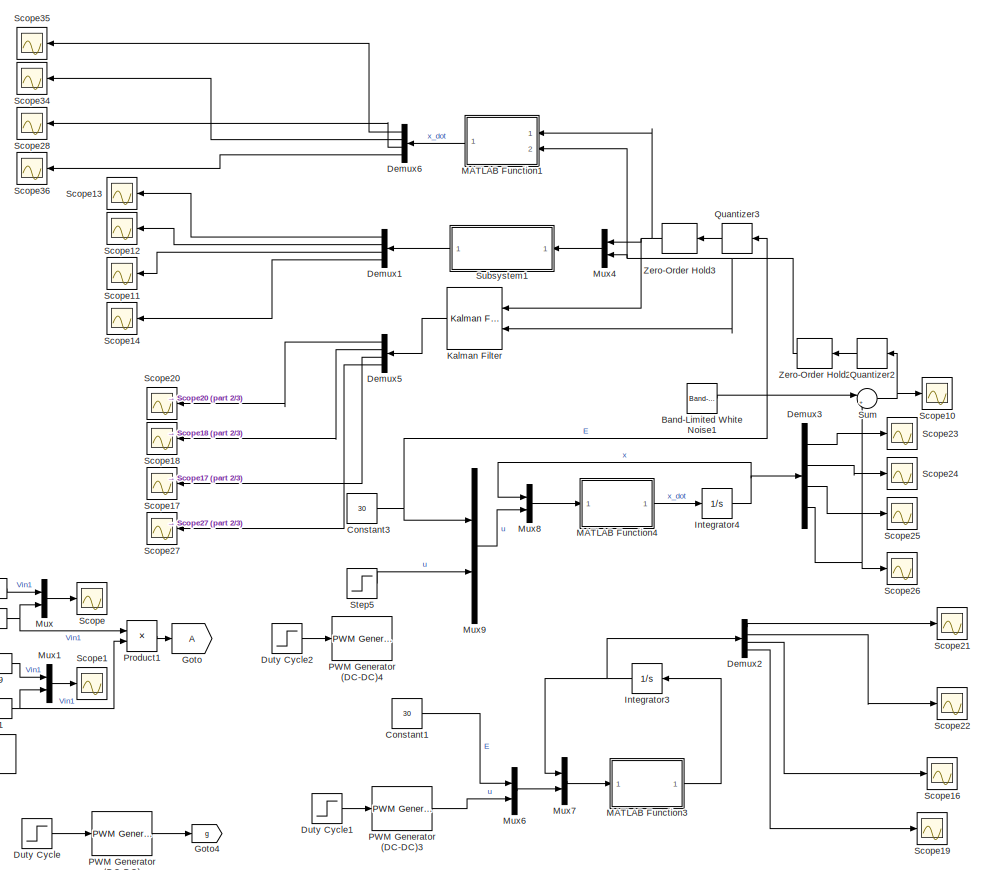
[diagram: root canvas - part 1/3, middle right region]
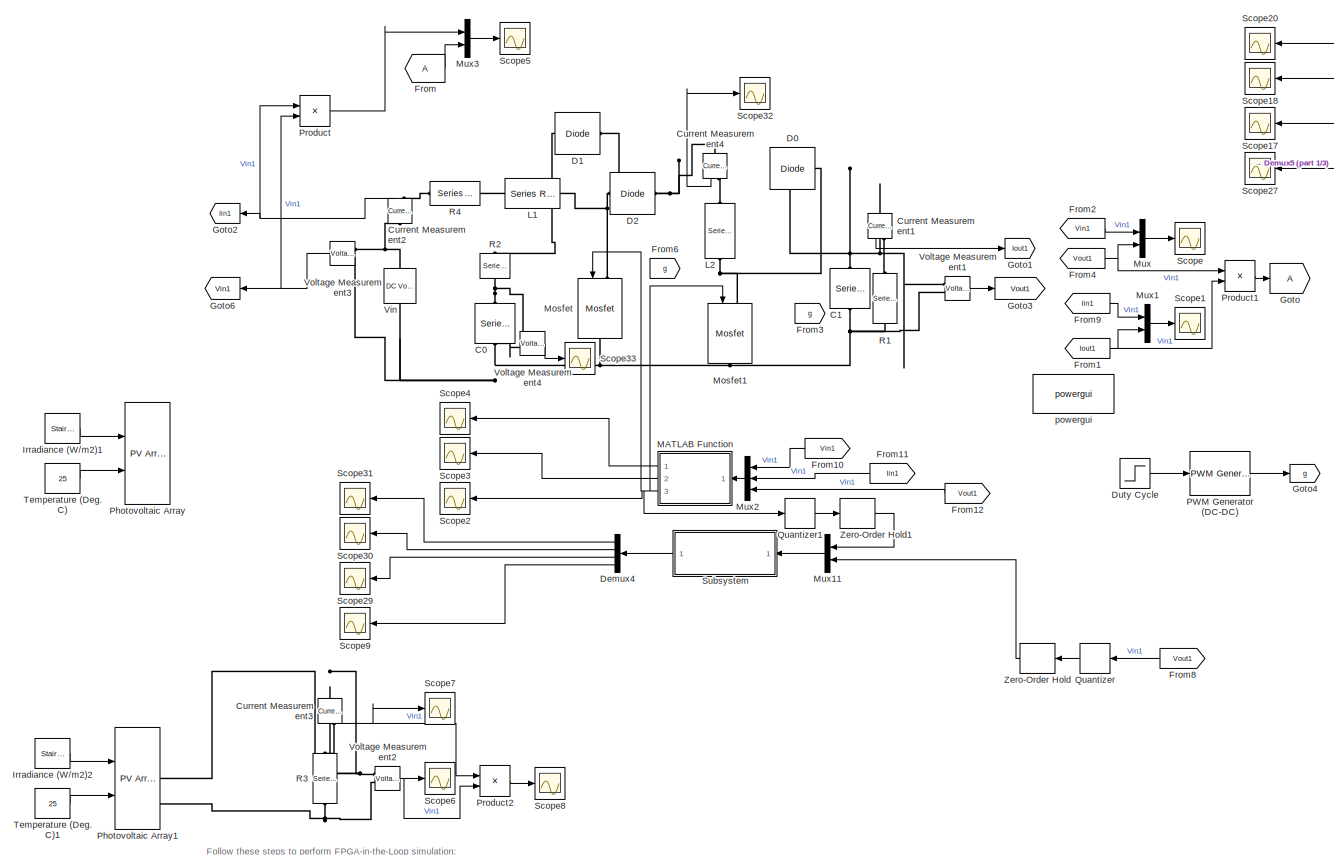
[diagram: root canvas - part 2/3, middle left region]
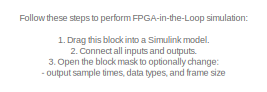
[diagram: root canvas - part 3/3, bottom left region]
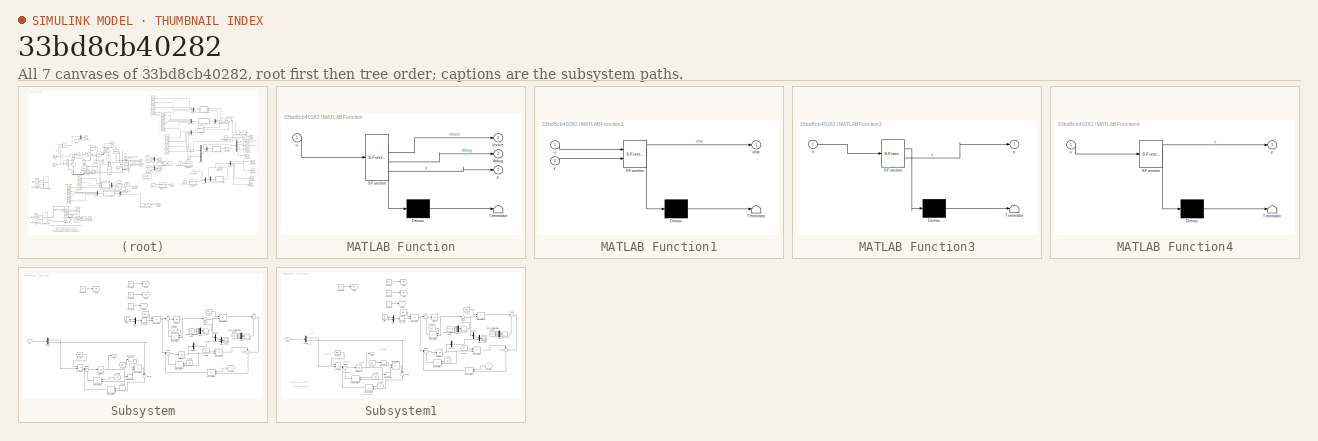
[diagram: thumbnail index - all 7 canvases of the model, root first then tree order]
MODEL slx_33bd8cb40282
KIND model
CONFIG AbsTol = auto
CONFIG EnableMultiTasking = off
CONFIG FixedStep = auto
CONFIG MaxStep = auto
CONFIG MinStep = auto
CONFIG RelTol = 1e-3
CONFIG SampleTimeConstraint = Unconstrained
CONFIG SolverName = VariableStepAuto
CONFIG StartTime = 0.0
CONFIG StopTime = 10.0
BLOCK [Reference] Band-Limited White Noise1  REF=simulink/Sources/Band-Limited
White Noise
  Ports = [0, 1]
  SourceBlock = simulink/Sources/Band-Limited\nWhite Noise
  SourceProductBaseCode = SL
  SourceType = Band-Limited White Noise.
BLOCK [Reference] C0  REF=powerlib/Elements/Series RLC Branch
  NameLocation = left
  Ports = [0, 0, 0, 0, 0, 1, 1]
  SourceBlock = powerlib/Elements/Series RLC Branch
  SourceProductBaseCode = PS
  SourceType = Series RLC Branch
BLOCK [Reference] C1  REF=powerlib/Elements/Series RLC Branch
  NameLocation = left
  Ports = [0, 0, 0, 0, 0, 1, 1]
  SourceBlock = powerlib/Elements/Series RLC Branch
  SourceProductBaseCode = PS
  SourceType = Series RLC Branch
BLOCK [Constant] Constant1
  Commented = on
  Value = 30
BLOCK [Constant] Constant3
  Value = 30
BLOCK [Reference] Current Measurement1  REF=powerlib/Measurements/Current Measurement
  NameLocation = right
  Ports = [0, 1, 0, 0, 0, 1, 1]
  SourceBlock = powerlib/Measurements/Current Measurement
  SourceProductBaseCode = PS
  SourceType = Current Measurement
  UserDataPersistent = on
BLOCK [Reference] Current Measurement2  REF=powerlib/Measurements/Current Measurement
  NameLocation = right
  Ports = [0, 1, 0, 0, 0, 1, 1]
  SourceBlock = powerlib/Measurements/Current Measurement
  SourceProductBaseCode = PS
  SourceType = Current Measurement
  UserDataPersistent = on
BLOCK [Reference] Current Measurement3  REF=powerlib/Measurements/Current Measurement
  NameLocation = left
  Ports = [0, 1, 0, 0, 0, 1, 1]
  SourceBlock = powerlib/Measurements/Current Measurement
  SourceProductBaseCode = PS
  SourceType = Current Measurement
  UserDataPersistent = on
BLOCK [Reference] Current Measurement4  REF=powerlib/Measurements/Current Measurement
  NameLocation = right
  Ports = [0, 1, 0, 0, 0, 1, 1]
  SourceBlock = powerlib/Measurements/Current Measurement
  SourceProductBaseCode = PS
  SourceType = Current Measurement
  UserDataPersistent = on
BLOCK [Reference] D0  REF=powerlib/Power
Electronics/Diode
  Ports = [0, 0, 0, 0, 0, 1, 1]
  SourceBlock = powerlib/Power\nElectronics/Diode
  SourceProductBaseCode = PS
  SourceType = Diode
BLOCK [Reference] D1  REF=powerlib/Power
Electronics/Diode
  Ports = [0, 0, 0, 0, 0, 1, 1]
  SourceBlock = powerlib/Power\nElectronics/Diode
  SourceProductBaseCode = PS
  SourceType = Diode
BLOCK [Reference] D2  REF=powerlib/Power
Electronics/Diode
  Ports = [0, 0, 0, 0, 0, 1, 1]
  SourceBlock = powerlib/Power\nElectronics/Diode
  SourceProductBaseCode = PS
  SourceType = Diode
BLOCK [Demux] Demux1
  Ports = [1, 4]
BLOCK [Demux] Demux2
  Commented = on
  Ports = [1, 4]
BLOCK [Demux] Demux3
  Ports = [1, 4]
BLOCK [Demux] Demux4
  Ports = [1, 4]
BLOCK [Demux] Demux5
  Ports = [1, 4]
BLOCK [Demux] Demux6
  Ports = [1, 4]
BLOCK [Step] Duty Cycle
  After = 0.5
  Before = 0.5
  SampleTime = 0
  Time = 0.5
BLOCK [Step] Duty Cycle1
  After = 0.5
  Before = 0.5
  Commented = on
  SampleTime = 0
  Time = 0.5
BLOCK [Step] Duty Cycle2
  After = 0.5
  Before = 0.5
  Commented = on
  SampleTime = 0
  Time = 0.5
BLOCK [From] From
BLOCK [From] From1
  GotoTag = Iout1
BLOCK [From] From10
  GotoTag = Vin1
BLOCK [From] From11
  GotoTag = Iin1
BLOCK [From] From12
  GotoTag = Vout1
BLOCK [From] From2
  GotoTag = Vin1
BLOCK [From] From3
  GotoTag = g
BLOCK [From] From4
  GotoTag = Vout1
BLOCK [From] From6
  GotoTag = g
BLOCK [From] From8
  GotoTag = Vout1
BLOCK [From] From9
  GotoTag = Iin1
BLOCK [Goto] Goto
BLOCK [Goto] Goto1
  GotoTag = Iout1
BLOCK [Goto] Goto2
  GotoTag = Iin1
BLOCK [Goto] Goto3
  GotoTag = Vout1
BLOCK [Goto] Goto4
  GotoTag = g
BLOCK [Goto] Goto6
  GotoTag = Vin1
BLOCK [Integrator] Integrator3
  Commented = on
  InitialCondition = [0 0 0 0]
  Ports = [1, 1]
BLOCK [Integrator] Integrator4
  InitialCondition = zeros(4,1)
  Ports = [1, 1]
BLOCK [Reference] Irradiance (W//m2)1  REF=powerlib_meascontrol/Pulse & Signal
Generators/Stair
Generator
  Commented = on
  NameLocation = top
  Ports = [0, 1]
  SourceBlock = powerlib_meascontrol/Pulse & Signal\nGenerators/Stair\nGenerator
  SourceProductBaseCode = PS
  SourceType = Stair Generator
BLOCK [Reference] Irradiance (W//m2)2  REF=powerlib_meascontrol/Pulse & Signal
Generators/Stair
Generator
  NameLocation = top
  Ports = [0, 1]
  SourceBlock = powerlib_meascontrol/Pulse & Signal\nGenerators/Stair\nGenerator
  SourceProductBaseCode = PS
  SourceType = Stair Generator
BLOCK [Reference] Kalman Filter  REF=ctrlSharedLib/Kalman Filter
  Commented = on
  Ports = [2, 1]
  SourceBlock = ctrlSharedLib/Kalman Filter
  SourceProductBaseCode = CT,ID
  SourceType = ctrlKalmanFilter
BLOCK [Reference] L1  REF=powerlib/Elements/Series RLC Branch
  NameLocation = top
  Ports = [0, 0, 0, 0, 0, 1, 1]
  SourceBlock = powerlib/Elements/Series RLC Branch
  SourceProductBaseCode = PS
  SourceType = Series RLC Branch
BLOCK [Reference] L2  REF=powerlib/Elements/Series RLC Branch
  NameLocation = right
  Ports = [0, 0, 0, 0, 0, 1, 1]
  SourceBlock = powerlib/Elements/Series RLC Branch
  SourceProductBaseCode = PS
  SourceType = Series RLC Branch
BLOCK [SubSystem] MATLAB Function
  ErrorFcn = Stateflow.Translate.translate
  PermitHierarchicalResolution = ExplicitOnly
  Ports = [1, 3]
  RequestExecContextInheritance = off
  SFBlockType = MATLAB Function
  SystemSampleTime = 15e-6
  TreatAsAtomicUnit = on
BLOCK [Demux] MATLAB Function/ Demux 
  Outputs = 1
  Ports = [1, 1]
BLOCK [S-Function] MATLAB Function/ SFunction 
  EnableBusSupport = on
  FunctionName = sf_sfun
  PortCounts = [1 4]
  Ports = [1, 4]
  SFcnIsStateOwnerBlock = off
  SFunctionDeploymentMode = off
  Tag = Stateflow S-Function 2
BLOCK [Terminator] MATLAB Function/ Terminator 
BLOCK [Outport] MATLAB Function/choice
BLOCK [Outport] MATLAB Function/debug
  Port = 2
BLOCK [Inport] MATLAB Function/u
BLOCK [Outport] MATLAB Function/y
  Port = 3
BLOCK [SubSystem] MATLAB Function1
  ErrorFcn = Stateflow.Translate.translate
  PermitHierarchicalResolution = ExplicitOnly
  Ports = [2, 1]
  RequestExecContextInheritance = off
  SFBlockType = MATLAB Function
  SystemSampleTime = 15e-6
  TreatAsAtomicUnit = on
BLOCK [Demux] MATLAB Function1/ Demux 
  Outputs = 1
  Ports = [1, 1]
BLOCK [S-Function] MATLAB Function1/ SFunction 
  EnableBusSupport = on
  FunctionName = sf_sfun
  PortCounts = [2 2]
  Ports = [2, 2]
  SFcnIsStateOwnerBlock = off
  SFunctionDeploymentMode = off
  Tag = Stateflow S-Function 1
BLOCK [Terminator] MATLAB Function1/ Terminator 
BLOCK [Inport] MATLAB Function1/u
BLOCK [Outport] MATLAB Function1/xhat
BLOCK [Inport] MATLAB Function1/y
  Port = 2
BLOCK [SubSystem] MATLAB Function3
  Commented = on
  ErrorFcn = Stateflow.Translate.translate
  PermitHierarchicalResolution = ExplicitOnly
  Ports = [1, 1]
  RequestExecContextInheritance = off
  SFBlockType = MATLAB Function
  TreatAsAtomicUnit = on
BLOCK [Demux] MATLAB Function3/ Demux 
  Outputs = 1
  Ports = [1, 1]
BLOCK [S-Function] MATLAB Function3/ SFunction 
  EnableBusSupport = on
  FunctionName = sf_sfun
  PortCounts = [1 2]
  Ports = [1, 2]
  SFcnIsStateOwnerBlock = off
  SFunctionDeploymentMode = off
  Tag = Stateflow S-Function 4
BLOCK [Terminator] MATLAB Function3/ Terminator 
BLOCK [Inport] MATLAB Function3/u
BLOCK [Outport] MATLAB Function3/y
BLOCK [SubSystem] MATLAB Function4
  ErrorFcn = Stateflow.Translate.translate
  PermitHierarchicalResolution = ExplicitOnly
  Ports = [1, 1]
  RequestExecContextInheritance = off
  SFBlockType = MATLAB Function
  TreatAsAtomicUnit = on
BLOCK [Demux] MATLAB Function4/ Demux 
  Outputs = 1
  Ports = [1, 1]
BLOCK [S-Function] MATLAB Function4/ SFunction 
  EnableBusSupport = on
  FunctionName = sf_sfun
  PortCounts = [1 2]
  Ports = [1, 2]
  SFcnIsStateOwnerBlock = off
  SFunctionDeploymentMode = off
  Tag = Stateflow S-Function 5
BLOCK [Terminator] MATLAB Function4/ Terminator 
BLOCK [Inport] MATLAB Function4/u
BLOCK [Outport] MATLAB Function4/y
BLOCK [Reference] Mosfet  REF=powerlib/Power
Electronics/Mosfet
  NameLocation = left
  Ports = [1, 0, 0, 0, 0, 1, 1]
  SourceBlock = powerlib/Power\nElectronics/Mosfet
  SourceProductBaseCode = PS
  SourceType = Mosfet
BLOCK [Reference] Mosfet1  REF=powerlib/Power
Electronics/Mosfet
  NameLocation = left
  Ports = [1, 0, 0, 0, 0, 1, 1]
  SourceBlock = powerlib/Power\nElectronics/Mosfet
  SourceProductBaseCode = PS
  SourceType = Mosfet
BLOCK [Mux] Mux
  DisplayOption = bar
  Inputs = 2
  Ports = [2, 1]
BLOCK [Mux] Mux1
  DisplayOption = bar
  Inputs = 2
  Ports = [2, 1]
BLOCK [Mux] Mux11
  DisplayOption = bar
  Inputs = 2
  Ports = [2, 1]
BLOCK [Mux] Mux2
  DisplayOption = bar
  Inputs = 3
  Ports = [3, 1]
BLOCK [Mux] Mux3
  DisplayOption = bar
  Inputs = 2
  Ports = [2, 1]
BLOCK [Mux] Mux4
  DisplayOption = bar
  Inputs = 2
  Ports = [2, 1]
BLOCK [Mux] Mux6
  Commented = on
  DisplayOption = bar
  Inputs = 2
  Ports = [2, 1]
BLOCK [Mux] Mux7
  Commented = on
  DisplayOption = bar
  Inputs = 2
  Ports = [2, 1]
BLOCK [Mux] Mux8
  DisplayOption = bar
  Inputs = 2
  Ports = [2, 1]
BLOCK [Mux] Mux9
  DisplayOption = bar
  Inputs = 2
  Ports = [2, 1]
BLOCK [Reference] PWM Generator (DC-DC)  REF=powerlib_meascontrol/Pulse & Signal
Generators/PWM Generator
(DC-DC)
  NameLocation = top
  Ports = [1, 1]
  SourceBlock = powerlib_meascontrol/Pulse & Signal\nGenerators/PWM Generator\n(DC-DC)
  SourceProductBaseCode = PS
  SourceType = PWM Generator (DC-DC)
BLOCK [Reference] PWM Generator (DC-DC)3  REF=powerlib_meascontrol/Pulse & Signal
Generators/PWM Generator
(DC-DC)
  Commented = on
  NameLocation = top
  Ports = [1, 1]
  SourceBlock = powerlib_meascontrol/Pulse & Signal\nGenerators/PWM Generator\n(DC-DC)
  SourceProductBaseCode = PS
  SourceType = PWM Generator (DC-DC)
BLOCK [Reference] PWM Generator (DC-DC)4  REF=powerlib_meascontrol/Pulse & Signal
Generators/PWM Generator
(DC-DC)
  Commented = on
  NameLocation = top
  Ports = [1, 1]
  SourceBlock = powerlib_meascontrol/Pulse & Signal\nGenerators/PWM Generator\n(DC-DC)
  SourceProductBaseCode = PS
  SourceType = PWM Generator (DC-DC)
BLOCK [Reference] Photovoltaic Array  REF=re_lib/Solar/PV Array
  AttributesFormatString = %<ModuleName>\n%<Nser>-module string\n%<Npar> parallel strings
  Commented = on
  Ports = [2, 1, 0, 0, 0, 0, 2]
  SourceBlock = re_lib/Solar/PV Array
  SourceProductBaseCode = PS
  SourceType = PV array
BLOCK [Reference] Photovoltaic Array1  REF=re_lib/Solar/PV Array
  AttributesFormatString = %<ModuleName>\n%<Nser>-module string\n%<Npar> parallel strings
  Ports = [2, 1, 0, 0, 0, 0, 2]
  SourceBlock = re_lib/Solar/PV Array
  SourceProductBaseCode = PS
  SourceType = PV array
BLOCK [Product] Product
  Ports = [2, 1]
BLOCK [Product] Product1
  Ports = [2, 1]
BLOCK [Product] Product2
  Ports = [2, 1]
BLOCK [Quantizer] Quantizer
  QuantizationInterval = 15e-6
BLOCK [Quantizer] Quantizer1
  QuantizationInterval = 15e-6
BLOCK [Quantizer] Quantizer2
  QuantizationInterval = 15e-6
BLOCK [Quantizer] Quantizer3
  QuantizationInterval = 15e-6
BLOCK [Reference] R1  REF=powerlib/Elements/Series RLC Branch
  NameLocation = left
  Ports = [0, 0, 0, 0, 0, 1, 1]
  SourceBlock = powerlib/Elements/Series RLC Branch
  SourceProductBaseCode = PS
  SourceType = Series RLC Branch
BLOCK [Reference] R2  REF=powerlib/Elements/Series RLC Branch
  NameLocation = left
  Ports = [0, 0, 0, 0, 0, 1, 1]
  SourceBlock = powerlib/Elements/Series RLC Branch
  SourceProductBaseCode = PS
  SourceType = Series RLC Branch
BLOCK [Reference] R3  REF=powerlib/Elements/Series RLC Branch
  NameLocation = left
  Ports = [0, 0, 0, 0, 0, 1, 1]
  SourceBlock = powerlib/Elements/Series RLC Branch
  SourceProductBaseCode = PS
  SourceType = Series RLC Branch
BLOCK [Reference] R4  REF=powerlib/Elements/Series RLC Branch
  Ports = [0, 0, 0, 0, 0, 1, 1]
  SourceBlock = powerlib/Elements/Series RLC Branch
  SourceProductBaseCode = PS
  SourceType = Series RLC Branch
BLOCK [Scope] Scope
  Floating = off
  NumInputPorts = 1
  Ports = [1]
  ScopeSpecificationString = Simulink.scopes.TimeScopeBlockCfg('CurrentConfiguration', extmgr.ConfigurationSet(extmgr.Configuration('Core','General UI',true),extmgr.Configuration('Core','Source UI',true),extmgr.Configuration('Sources','WiredSimulink',true,'DataLogging',true,'DataLoggingVariableName','ScopeData1','DataLoggingSaveFormat','Array'),extmgr.Configuration('Visuals','Time Domain',true,'SerializedDisplays',{struct('Mi...<+1504ch>
BLOCK [Scope] Scope1
  Floating = off
  NumInputPorts = 1
  Ports = [1]
  ScopeSpecificationString = Simulink.scopes.TimeScopeBlockCfg('CurrentConfiguration', extmgr.ConfigurationSet(extmgr.Configuration('Core','General UI',true),extmgr.Configuration('Core','Source UI',true),extmgr.Configuration('Sources','WiredSimulink',true,'DataLoggingVariableName','ScopeData2','DataLogging',true,'DataLoggingSaveFormat','Array'),extmgr.Configuration('Visuals','Time Domain',true,'SerializedDisplays',{struct('Mi...<+1492ch>
BLOCK [Scope] Scope10
  Floating = off
  NumInputPorts = 1
  Ports = [1]
  ScopeSpecificationString = Simulink.scopes.TimeScopeBlockCfg('CurrentConfiguration', extmgr.ConfigurationSet(extmgr.Configuration('Core','General UI',true),extmgr.Configuration('Core','Source UI',true),extmgr.Configuration('Sources','WiredSimulink',true,'DataLoggingVariableName','ScopeData2'),extmgr.Configuration('Visuals','Time Domain',true,'SerializedDisplays',{struct('MinYLimReal','82.43866','MaxYLimReal','106.28924','YL...<+1416ch>
BLOCK [Scope] Scope11
  Floating = off
  NumInputPorts = 1
  Ports = [1]
  ScopeSpecificationString = Simulink.scopes.TimeScopeBlockCfg('CurrentConfiguration', extmgr.ConfigurationSet(extmgr.Configuration('Core','General UI',true),extmgr.Configuration('Core','Source UI',true),extmgr.Configuration('Sources','WiredSimulink',true,'DataLoggingVariableName','ScopeData3'),extmgr.Configuration('Visuals','Time Domain',true,'SerializedDisplays',{struct('MinYLimReal','-0.95595','MaxYLimReal','8.60352','YLab...<+1411ch>
BLOCK [Scope] Scope12
  Floating = off
  NumInputPorts = 1
  Ports = [1]
  ScopeSpecificationString = Simulink.scopes.TimeScopeBlockCfg('CurrentConfiguration', extmgr.ConfigurationSet(extmgr.Configuration('Core','General UI',true),extmgr.Configuration('Core','Source UI',true),extmgr.Configuration('Sources','WiredSimulink',true,'DataLoggingVariableName','ScopeData4','DataLoggingSaveFormat','Array'),extmgr.Configuration('Visuals','Time Domain',true,'SerializedDisplays',{struct('MinYLimReal','-0.9559...<+1506ch>
BLOCK [Scope] Scope13
  Floating = off
  NumInputPorts = 1
  Ports = [1]
  ScopeSpecificationString = Simulink.scopes.TimeScopeBlockCfg('CurrentConfiguration', extmgr.ConfigurationSet(extmgr.Configuration('Core','General UI',true),extmgr.Configuration('Core','Source UI',true),extmgr.Configuration('Sources','WiredSimulink',true,'DataLoggingVariableName','ScopeData5'),extmgr.Configuration('Visuals','Time Domain',true,'SerializedDisplays',{struct('MinYLimReal','-3.4629','MaxYLimReal','31.1661','YLabe...<+1438ch>
BLOCK [Scope] Scope14
  Floating = off
  NumInputPorts = 1
  Ports = [1]
  ScopeSpecificationString = Simulink.scopes.TimeScopeBlockCfg('CurrentConfiguration', extmgr.ConfigurationSet(extmgr.Configuration('Core','General UI',true),extmgr.Configuration('Core','Source UI',true),extmgr.Configuration('Sources','WiredSimulink',true,'DataLoggingVariableName','ScopeData6'),extmgr.Configuration('Visuals','Time Domain',true,'SerializedDisplays',{struct('MinYLimReal','-9.62637','MaxYLimReal','86.63733','YLa...<+1415ch>
BLOCK [Scope] Scope16
  Commented = on
  Floating = off
  NumInputPorts = 1
  Ports = [1]
  ScopeSpecificationString = Simulink.scopes.TimeScopeBlockCfg('CurrentConfiguration', extmgr.ConfigurationSet(extmgr.Configuration('Core','General UI',true),extmgr.Configuration('Core','Source UI',true),extmgr.Configuration('Sources','WiredSimulink',true,'DataLoggingVariableName','ScopeData3'),extmgr.Configuration('Visuals','Time Domain',true,'SerializedDisplays',{struct('MinYLimReal','82.53711','MaxYLimReal','82.62766','YLa...<+1446ch>
BLOCK [Scope] Scope17
  Floating = off
  NumInputPorts = 1
  Ports = [1]
  ScopeSpecificationString = Simulink.scopes.TimeScopeBlockCfg('CurrentConfiguration', extmgr.ConfigurationSet(extmgr.Configuration('Core','General UI',true),extmgr.Configuration('Core','Source UI',true),extmgr.Configuration('Sources','WiredSimulink',true,'DataLoggingVariableName','ScopeData1'),extmgr.Configuration('Visuals','Time Domain',true,'SerializedDisplays',{struct('MinYLimReal','-207.59112','MaxYLimReal','375.23701','...<+1425ch>
BLOCK [Scope] Scope18
  Floating = off
  NumInputPorts = 1
  Ports = [1]
  ScopeSpecificationString = Simulink.scopes.TimeScopeBlockCfg('CurrentConfiguration', extmgr.ConfigurationSet(extmgr.Configuration('Core','General UI',true),extmgr.Configuration('Core','Source UI',true),extmgr.Configuration('Sources','WiredSimulink',true,'DataLoggingVariableName','ScopeData2','DataLoggingSaveFormat','Array'),extmgr.Configuration('Visuals','Time Domain',true,'SerializedDisplays',{struct('MinYLimReal','-1.7454...<+1510ch>
BLOCK [Scope] Scope19
  Commented = on
  Floating = off
  NumInputPorts = 1
  Ports = [1]
  ScopeSpecificationString = Simulink.scopes.TimeScopeBlockCfg('CurrentConfiguration', extmgr.ConfigurationSet(extmgr.Configuration('Core','General UI',true),extmgr.Configuration('Core','Source UI',true),extmgr.Configuration('Sources','WiredSimulink',true,'DataLoggingVariableName','ScopeData4'),extmgr.Configuration('Visuals','Time Domain',true,'SerializedDisplays',{struct('MinYLimReal','-3.70689','MaxYLimReal','33.36202','YLa...<+1415ch>
BLOCK [Scope] Scope2
  Floating = off
  NumInputPorts = 1
  Ports = [1]
  ScopeSpecificationString = Simulink.scopes.TimeScopeBlockCfg('CurrentConfiguration', extmgr.ConfigurationSet(extmgr.Configuration('Core','General UI',true),extmgr.Configuration('Core','Source UI',true),extmgr.Configuration('Sources','WiredSimulink',true,'DataLoggingVariableName','ScopeData5'),extmgr.Configuration('Visuals','Time Domain',true,'SerializedDisplays',{struct('MinYLimReal','0.507001243','MaxYLimReal','0.507001264...<+1450ch>
BLOCK [Scope] Scope20
  Floating = off
  NumInputPorts = 1
  Ports = [1]
  ScopeSpecificationString = Simulink.scopes.TimeScopeBlockCfg('CurrentConfiguration', extmgr.ConfigurationSet(extmgr.Configuration('Core','General UI',true),extmgr.Configuration('Core','Source UI',true),extmgr.Configuration('Sources','WiredSimulink',true,'DataLoggingVariableName','ScopeData3'),extmgr.Configuration('Visuals','Time Domain',true,'SerializedDisplays',{struct('MinYLimReal','-100.42191','MaxYLimReal','903.79647','...<+1454ch>
BLOCK [Scope] Scope21
  Commented = on
  Floating = off
  NumInputPorts = 1
  Ports = [1]
  ScopeSpecificationString = Simulink.scopes.TimeScopeBlockCfg('CurrentConfiguration', extmgr.ConfigurationSet(extmgr.Configuration('Core','General UI',true),extmgr.Configuration('Core','Source UI',true),extmgr.Configuration('Sources','WiredSimulink',true,'DataLoggingVariableName','ScopeData7'),extmgr.Configuration('Visuals','Time Domain',true,'SerializedDisplays',{struct('MinYLimReal','-1.37161','MaxYLimReal','12.3445','YLab...<+1386ch>
BLOCK [Scope] Scope22
  Commented = on
  Floating = off
  NumInputPorts = 1
  Ports = [1]
  ScopeSpecificationString = Simulink.scopes.TimeScopeBlockCfg('CurrentConfiguration', extmgr.ConfigurationSet(extmgr.Configuration('Core','General UI',true),extmgr.Configuration('Core','Source UI',true),extmgr.Configuration('Sources','WiredSimulink',true,'DataLoggingVariableName','ScopeData8'),extmgr.Configuration('Visuals','Time Domain',true,'SerializedDisplays',{struct('MinYLimReal','-1.37161','MaxYLimReal','12.3445','YLab...<+1367ch>
BLOCK [Scope] Scope23
  Floating = off
  NumInputPorts = 1
  Ports = [1]
  ScopeSpecificationString = Simulink.scopes.TimeScopeBlockCfg('CurrentConfiguration', extmgr.ConfigurationSet(extmgr.Configuration('Core','General UI',true),extmgr.Configuration('Core','Source UI',true),extmgr.Configuration('Sources','WiredSimulink',true,'DataLoggingVariableName','ScopeData9'),extmgr.Configuration('Visuals','Time Domain',true,'SerializedDisplays',{struct('MinYLimReal','-3.46285','MaxYLimReal','31.16565','YLa...<+1415ch>
BLOCK [Scope] Scope24
  Floating = off
  NumInputPorts = 1
  Ports = [1]
  ScopeSpecificationString = Simulink.scopes.TimeScopeBlockCfg('CurrentConfiguration', extmgr.ConfigurationSet(extmgr.Configuration('Core','General UI',true),extmgr.Configuration('Core','Source UI',true),extmgr.Configuration('Sources','WiredSimulink',true,'DataLoggingVariableName','ScopeData10'),extmgr.Configuration('Visuals','Time Domain',true,'SerializedDisplays',{struct('MinYLimReal','-0.95595','MaxYLimReal','8.60355','YLa...<+1412ch>
BLOCK [Scope] Scope25
  Floating = off
  NumInputPorts = 1
  Ports = [1]
  ScopeSpecificationString = Simulink.scopes.TimeScopeBlockCfg('CurrentConfiguration', extmgr.ConfigurationSet(extmgr.Configuration('Core','General UI',true),extmgr.Configuration('Core','Source UI',true),extmgr.Configuration('Sources','WiredSimulink',true,'DataLoggingVariableName','ScopeData11'),extmgr.Configuration('Visuals','Time Domain',true,'SerializedDisplays',{struct('MinYLimReal','-0.95595','MaxYLimReal','8.60355','YLa...<+1412ch>
BLOCK [Scope] Scope26
  Floating = off
  NumInputPorts = 1
  Ports = [1]
  ScopeSpecificationString = Simulink.scopes.TimeScopeBlockCfg('CurrentConfiguration', extmgr.ConfigurationSet(extmgr.Configuration('Core','General UI',true),extmgr.Configuration('Core','Source UI',true),extmgr.Configuration('Sources','WiredSimulink',true,'DataLoggingVariableName','ScopeData12'),extmgr.Configuration('Visuals','Time Domain',true,'SerializedDisplays',{struct('MinYLimReal','-9.62636','MaxYLimReal','86.63725','YL...<+1416ch>
BLOCK [Scope] Scope27
  Floating = off
  NumInputPorts = 1
  Ports = [1]
  ScopeSpecificationString = Simulink.scopes.TimeScopeBlockCfg('CurrentConfiguration', extmgr.ConfigurationSet(extmgr.Configuration('Core','General UI',true),extmgr.Configuration('Core','Source UI',true),extmgr.Configuration('Sources','WiredSimulink',true,'DataLoggingVariableName','ScopeData4'),extmgr.Configuration('Visuals','Time Domain',true,'SerializedDisplays',{struct('MinYLimReal','-6.12931','MaxYLimReal','55.16535','YLa...<+1415ch>
BLOCK [Scope] Scope28
  Floating = off
  NumInputPorts = 1
  Ports = [1]
  ScopeSpecificationString = Simulink.scopes.TimeScopeBlockCfg('CurrentConfiguration', extmgr.ConfigurationSet(extmgr.Configuration('Core','General UI',true),extmgr.Configuration('Core','Source UI',true),extmgr.Configuration('Sources','WiredSimulink',true,'DataLoggingVariableName','ScopeData1'),extmgr.Configuration('Visuals','Time Domain',true,'SerializedDisplays',{struct('MinYLimReal','-0.95595','MaxYLimReal','8.60352','YLab...<+1411ch>
BLOCK [Scope] Scope29
  Floating = off
  NumInputPorts = 1
  Ports = [1]
  ScopeSpecificationString = Simulink.scopes.TimeScopeBlockCfg('CurrentConfiguration', extmgr.ConfigurationSet(extmgr.Configuration('Core','General UI',true),extmgr.Configuration('Core','Source UI',true),extmgr.Configuration('Sources','WiredSimulink',true,'DataLoggingVariableName','ScopeData15'),extmgr.Configuration('Visuals','Time Domain',true,'SerializedDisplays',{struct('MinYLimReal','-11.47356','MaxYLimReal','103.26203','...<+1422ch>
BLOCK [Scope] Scope3
  Floating = off
  NumInputPorts = 1
  Ports = [1]
  ScopeSpecificationString = Simulink.scopes.TimeScopeBlockCfg('CurrentConfiguration', extmgr.ConfigurationSet(extmgr.Configuration('Core','General UI',true),extmgr.Configuration('Core','Source UI',true),extmgr.Configuration('Sources','WiredSimulink',true,'DataLoggingVariableName','ScopeData16','DataLogging',true,'DataLoggingSaveFormat','Array'),extmgr.Configuration('Visuals','Time Domain',true,'SerializedDisplays',{struct('M...<+1498ch>
BLOCK [Scope] Scope30
  Floating = off
  NumInputPorts = 1
  Ports = [1]
  ScopeSpecificationString = Simulink.scopes.TimeScopeBlockCfg('CurrentConfiguration', extmgr.ConfigurationSet(extmgr.Configuration('Core','General UI',true),extmgr.Configuration('Core','Source UI',true),extmgr.Configuration('Sources','WiredSimulink',true,'DataLoggingVariableName','ScopeData17','DataLoggingSaveFormat','Array'),extmgr.Configuration('Visuals','Time Domain',true,'SerializedDisplays',{struct('MinYLimReal','-1.010...<+1507ch>
BLOCK [Scope] Scope31
  Floating = off
  NumInputPorts = 1
  Ports = [1]
  ScopeSpecificationString = Simulink.scopes.TimeScopeBlockCfg('CurrentConfiguration', extmgr.ConfigurationSet(extmgr.Configuration('Core','General UI',true),extmgr.Configuration('Core','Source UI',true),extmgr.Configuration('Sources','WiredSimulink',true,'DataLoggingVariableName','ScopeData18'),extmgr.Configuration('Visuals','Time Domain',true,'SerializedDisplays',{struct('MinYLimReal','-37.16872','MaxYLimReal','51.02007','Y...<+1447ch>
BLOCK [Scope] Scope32
  Floating = off
  NumInputPorts = 1
  Ports = [1]
  ScopeSpecificationString = Simulink.scopes.TimeScopeBlockCfg('CurrentConfiguration', extmgr.ConfigurationSet(extmgr.Configuration('Core','General UI',true),extmgr.Configuration('Core','Source UI',true),extmgr.Configuration('Sources','WiredSimulink',true,'DataLoggingVariableName','ScopeData19','DataLogging',true,'DataLoggingSaveFormat','Array'),extmgr.Configuration('Visuals','Time Domain',true,'SerializedDisplays',{struct('M...<+1506ch>
BLOCK [Scope] Scope33
  Floating = off
  NumInputPorts = 1
  Ports = [1]
  ScopeSpecificationString = Simulink.scopes.TimeScopeBlockCfg('CurrentConfiguration', extmgr.ConfigurationSet(extmgr.Configuration('Core','General UI',true),extmgr.Configuration('Core','Source UI',true),extmgr.Configuration('Sources','WiredSimulink',true,'DataLoggingVariableName','ScopeData20','DataLogging',true,'DataLoggingSaveFormat','Array'),extmgr.Configuration('Visuals','Time Domain',true,'SerializedDisplays',{struct('M...<+1508ch>
BLOCK [Scope] Scope34
  Floating = off
  NumInputPorts = 1
  Ports = [1]
  ScopeSpecificationString = Simulink.scopes.TimeScopeBlockCfg('CurrentConfiguration', extmgr.ConfigurationSet(extmgr.Configuration('Core','General UI',true),extmgr.Configuration('Core','Source UI',true),extmgr.Configuration('Sources','WiredSimulink',true,'DataLoggingVariableName','ScopeData2','DataLoggingSaveFormat','Array'),extmgr.Configuration('Visuals','Time Domain',true,'SerializedDisplays',{struct('MinYLimReal','-0.9559...<+1506ch>
BLOCK [Scope] Scope35
  Floating = off
  NumInputPorts = 1
  Ports = [1]
  ScopeSpecificationString = Simulink.scopes.TimeScopeBlockCfg('CurrentConfiguration', extmgr.ConfigurationSet(extmgr.Configuration('Core','General UI',true),extmgr.Configuration('Core','Source UI',true),extmgr.Configuration('Sources','WiredSimulink',true,'DataLoggingVariableName','ScopeData3'),extmgr.Configuration('Visuals','Time Domain',true,'SerializedDisplays',{struct('MinYLimReal','-1.4195','MaxYLimReal','30.93895','YLab...<+1442ch>
BLOCK [Scope] Scope36
  Floating = off
  NumInputPorts = 1
  Ports = [1]
  ScopeSpecificationString = Simulink.scopes.TimeScopeBlockCfg('CurrentConfiguration', extmgr.ConfigurationSet(extmgr.Configuration('Core','General UI',true),extmgr.Configuration('Core','Source UI',true),extmgr.Configuration('Sources','WiredSimulink',true,'DataLoggingVariableName','ScopeData4'),extmgr.Configuration('Visuals','Time Domain',true,'SerializedDisplays',{struct('MinYLimReal','-9.62636','MaxYLimReal','86.63723','YLa...<+1415ch>
BLOCK [Scope] Scope4
  Floating = off
  NumInputPorts = 1
  Ports = [1]
  ScopeSpecificationString = Simulink.scopes.TimeScopeBlockCfg('CurrentConfiguration', extmgr.ConfigurationSet(extmgr.Configuration('Core','General UI',true),extmgr.Configuration('Core','Source UI',true),extmgr.Configuration('Sources','WiredSimulink',true,'DataLoggingVariableName','ScopeData25'),extmgr.Configuration('Visuals','Time Domain',true,'SerializedDisplays',{struct('MinYLimReal','0.5','MaxYLimReal','5.5','YLabelReal',...<+1396ch>
BLOCK [Scope] Scope5
  Floating = off
  NumInputPorts = 1
  Ports = [1]
  ScopeSpecificationString = Simulink.scopes.TimeScopeBlockCfg('CurrentConfiguration', extmgr.ConfigurationSet(extmgr.Configuration('Core','General UI',true),extmgr.Configuration('Core','Source UI',true),extmgr.Configuration('Sources','WiredSimulink',true,'DataLoggingVariableName','ScopeData26','DataLogging',true,'DataLoggingSaveFormat','Array'),extmgr.Configuration('Visuals','Time Domain',true,'SerializedDisplays',{struct('M...<+1510ch>
BLOCK [Scope] Scope6
  Floating = off
  NumInputPorts = 1
  Ports = [1]
  ScopeSpecificationString = Simulink.scopes.TimeScopeBlockCfg('CurrentConfiguration', extmgr.ConfigurationSet(extmgr.Configuration('Core','General UI',true),extmgr.Configuration('Core','Source UI',true),extmgr.Configuration('Sources','WiredSimulink',true,'DataLoggingVariableName','ScopeData27'),extmgr.Configuration('Visuals','Time Domain',true,'SerializedDisplays',{struct('MinYLimReal','1.00518','MaxYLimReal','7.16266','YLab...<+1410ch>
BLOCK [Scope] Scope7
  Floating = off
  NumInputPorts = 1
  Ports = [1]
  ScopeSpecificationString = Simulink.scopes.TimeScopeBlockCfg('CurrentConfiguration', extmgr.ConfigurationSet(extmgr.Configuration('Core','General UI',true),extmgr.Configuration('Core','Source UI',true),extmgr.Configuration('Sources','WiredSimulink',true,'DataLoggingVariableName','ScopeData28'),extmgr.Configuration('Visuals','Time Domain',true,'SerializedDisplays',{struct('MinYLimReal','1.00518','MaxYLimReal','7.16266','YLab...<+1410ch>
BLOCK [Scope] Scope8
  Floating = off
  NumInputPorts = 1
  Ports = [1]
  ScopeSpecificationString = Simulink.scopes.TimeScopeBlockCfg('CurrentConfiguration', extmgr.ConfigurationSet(extmgr.Configuration('Core','General UI',true),extmgr.Configuration('Core','Source UI',true),extmgr.Configuration('Sources','WiredSimulink',true,'DataLoggingVariableName','ScopeData29'),extmgr.Configuration('Visuals','Time Domain',true,'SerializedDisplays',{struct('MinYLimReal','16.7782','MaxYLimReal','16.7782099','Y...<+1421ch>
BLOCK [Scope] Scope9
  Floating = off
  NumInputPorts = 1
  Ports = [1]
  ScopeSpecificationString = Simulink.scopes.TimeScopeBlockCfg('CurrentConfiguration', extmgr.ConfigurationSet(extmgr.Configuration('Core','General UI',true),extmgr.Configuration('Core','Source UI',true),extmgr.Configuration('Sources','WiredSimulink',true,'DataLoggingVariableName','ScopeData1'),extmgr.Configuration('Visuals','Time Domain',true,'SerializedDisplays',{struct('MinYLimReal','-82.57869','MaxYLimReal','9.25959','YLa...<+1415ch>
BLOCK [Step] Step5
  After = .5
  Before = 0.5
  SampleTime = 0
  Time = .5
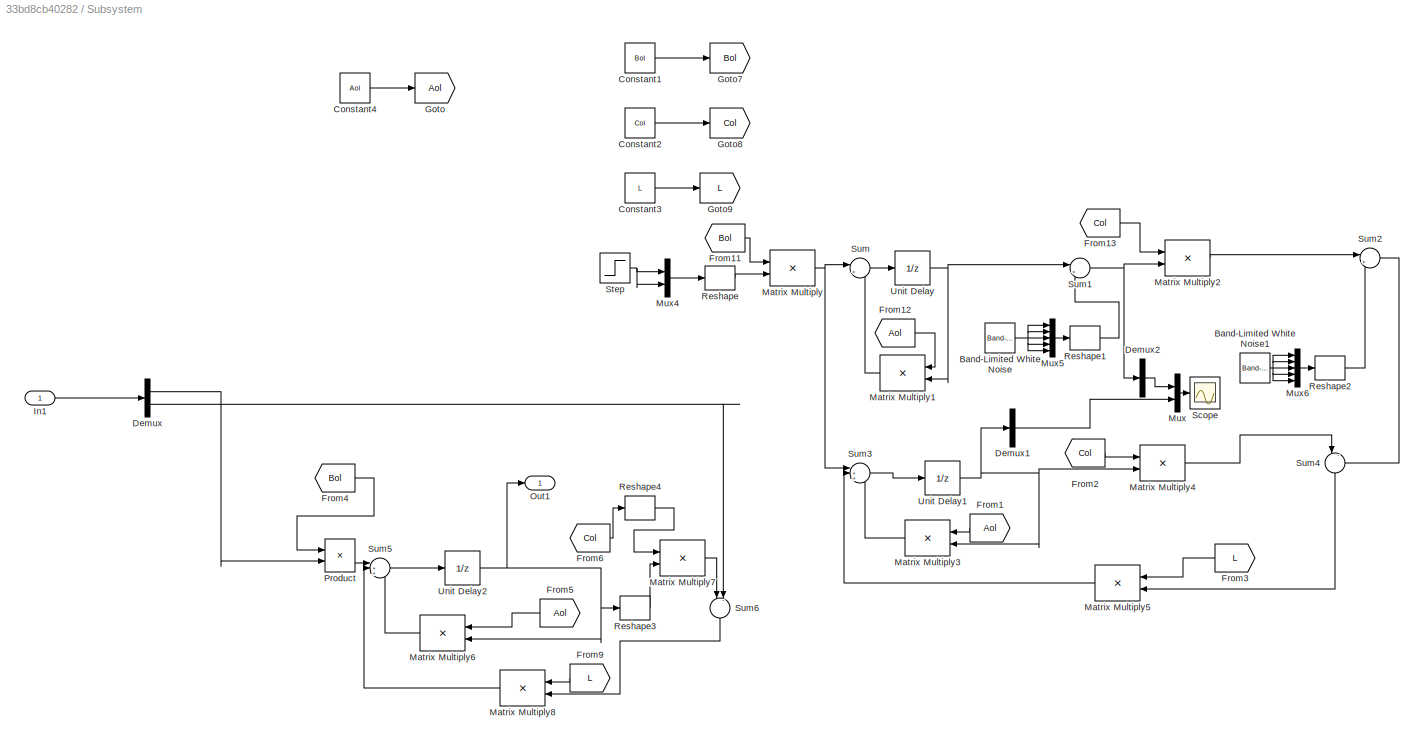
BLOCK [SubSystem] Subsystem
  Commented = on
  Ports = [1, 1]
  RequestExecContextInheritance = off
BLOCK [Reference] Subsystem/Band-Limited White Noise  REF=simulink/Sources/Band-Limited
White Noise
  Commented = on
  Ports = [0, 1]
  SourceBlock = simulink/Sources/Band-Limited\nWhite Noise
  SourceProductBaseCode = SL
  SourceType = Band-Limited White Noise.
BLOCK [Reference] Subsystem/Band-Limited White Noise1  REF=simulink/Sources/Band-Limited
White Noise
  Commented = on
  Ports = [0, 1]
  SourceBlock = simulink/Sources/Band-Limited\nWhite Noise
  SourceProductBaseCode = SL
  SourceType = Band-Limited White Noise.
BLOCK [Constant] Subsystem/Constant1
  Value = Bol
BLOCK [Constant] Subsystem/Constant2
  Value = Col
BLOCK [Constant] Subsystem/Constant3
  Value = L
BLOCK [Constant] Subsystem/Constant4
  Value = Aol
BLOCK [Demux] Subsystem/Demux
  Outputs = 2
  Ports = [1, 2]
BLOCK [Demux] Subsystem/Demux1
  Commented = on
  Outputs = 5
  Ports = [1, 5]
BLOCK [Demux] Subsystem/Demux2
  Commented = on
  Outputs = 5
  Ports = [1, 5]
BLOCK [From] Subsystem/From1
  Commented = on
  GotoTag = Aol
BLOCK [From] Subsystem/From11
  Commented = on
  GotoTag = Bol
BLOCK [From] Subsystem/From12
  Commented = on
  GotoTag = Aol
BLOCK [From] Subsystem/From13
  Commented = on
  GotoTag = Col
BLOCK [From] Subsystem/From2
  Commented = on
  GotoTag = Col
BLOCK [From] Subsystem/From3
  Commented = on
  GotoTag = L
BLOCK [From] Subsystem/From4
  GotoTag = Bol
BLOCK [From] Subsystem/From5
  GotoTag = Aol
BLOCK [From] Subsystem/From6
  GotoTag = Col
BLOCK [From] Subsystem/From9
  GotoTag = L
BLOCK [Goto] Subsystem/Goto
  GotoTag = Aol
BLOCK [Goto] Subsystem/Goto7
  GotoTag = Bol
BLOCK [Goto] Subsystem/Goto8
  GotoTag = Col
  IconDisplay = Tag and signal name
BLOCK [Goto] Subsystem/Goto9
  GotoTag = L
BLOCK [Inport] Subsystem/In1
BLOCK [Product] Subsystem/Matrix Multiply
  Commented = on
  Multiplication = Matrix(*)
  Ports = [2, 1]
BLOCK [Product] Subsystem/Matrix Multiply1
  Commented = on
  Multiplication = Matrix(*)
  Ports = [2, 1]
BLOCK [Product] Subsystem/Matrix Multiply2
  Commented = on
  Multiplication = Matrix(*)
  Ports = [2, 1]
BLOCK [Product] Subsystem/Matrix Multiply3
  Commented = on
  Multiplication = Matrix(*)
  Ports = [2, 1]
BLOCK [Product] Subsystem/Matrix Multiply4
  Commented = on
  Multiplication = Matrix(*)
  Ports = [2, 1]
BLOCK [Product] Subsystem/Matrix Multiply5
  Commented = on
  Multiplication = Matrix(*)
  Ports = [2, 1]
BLOCK [Product] Subsystem/Matrix Multiply6
  Multiplication = Matrix(*)
  Ports = [2, 1]
BLOCK [Product] Subsystem/Matrix Multiply7
  Multiplication = Matrix(*)
  Ports = [2, 1]
BLOCK [Product] Subsystem/Matrix Multiply8
  Multiplication = Matrix(*)
  Ports = [2, 1]
BLOCK [Mux] Subsystem/Mux
  Commented = on
  DisplayOption = bar
  Inputs = 2
  Ports = [2, 1]
BLOCK [Mux] Subsystem/Mux4
  Commented = on
  DisplayOption = bar
  Inputs = 2
  Ports = [2, 1]
BLOCK [Mux] Subsystem/Mux5
  Commented = on
  DisplayOption = bar
  Inputs = 5
  Ports = [5, 1]
BLOCK [Mux] Subsystem/Mux6
  Commented = on
  DisplayOption = bar
  Inputs = 5
  Ports = [5, 1]
BLOCK [Outport] Subsystem/Out1
BLOCK [Product] Subsystem/Product
  Multiplication = Matrix(*)
  Ports = [2, 1]
BLOCK [Reshape] Subsystem/Reshape
  Commented = on
  OutputDimensionality = Customize
  OutputDimensions = [2,1]
  Ports = [1, 1]
BLOCK [Reshape] Subsystem/Reshape1
  Commented = on
  OutputDimensionality = Customize
  OutputDimensions = [5,1]
  Ports = [1, 1]
BLOCK [Reshape] Subsystem/Reshape2
  Commented = on
  OutputDimensionality = Customize
  OutputDimensions = [5,1]
  Ports = [1, 1]
BLOCK [Reshape] Subsystem/Reshape3
  OutputDimensionality = Customize
  OutputDimensions = [4,1]
  Ports = [1, 1]
BLOCK [Reshape] Subsystem/Reshape4
  OutputDimensionality = Customize
  OutputDimensions = [1,4]
  Ports = [1, 1]
BLOCK [Scope] Subsystem/Scope
  Commented = on
  Floating = off
  NumInputPorts = 1
  Ports = [1]
  ScopeSpecificationString = Simulink.scopes.TimeScopeBlockCfg('CurrentConfiguration', extmgr.ConfigurationSet(extmgr.Configuration('Core','General UI',true),extmgr.Configuration('Core','Source UI',true),extmgr.Configuration('Sources','WiredSimulink',true,'DataLoggingVariableName','ScopeData21'),extmgr.Configuration('Visuals','Time Domain',true,'SerializedDisplays',{struct('MinYLimReal','-8.74084','MaxYLimReal','6.07776','YLa...<+1408ch>
BLOCK [Step] Subsystem/Step
  Commented = on
  SampleTime = 0
BLOCK [Sum] Subsystem/Sum
  Commented = on
  Inputs = |++
  Ports = [2, 1]
BLOCK [Sum] Subsystem/Sum1
  Commented = on
  Inputs = |++
  Ports = [2, 1]
BLOCK [Sum] Subsystem/Sum2
  Commented = on
  Inputs = |++
  Ports = [2, 1]
BLOCK [Sum] Subsystem/Sum3
  Commented = on
  Inputs = |+++
  Ports = [3, 1]
BLOCK [Sum] Subsystem/Sum4
  Commented = on
  Inputs = |-+
  NameLocation = left
  Ports = [2, 1]
BLOCK [Sum] Subsystem/Sum5
  Inputs = |+++
  Ports = [3, 1]
BLOCK [Sum] Subsystem/Sum6
  Inputs = |-+
  NameLocation = left
  Ports = [2, 1]
BLOCK [UnitDelay] Subsystem/Unit Delay
  Commented = on
  HasFrameUpgradeWarning = on
  SampleTime = -1
BLOCK [UnitDelay] Subsystem/Unit Delay1
  Commented = on
  HasFrameUpgradeWarning = on
  SampleTime = -1
BLOCK [UnitDelay] Subsystem/Unit Delay2
  HasFrameUpgradeWarning = on
  SampleTime = -1
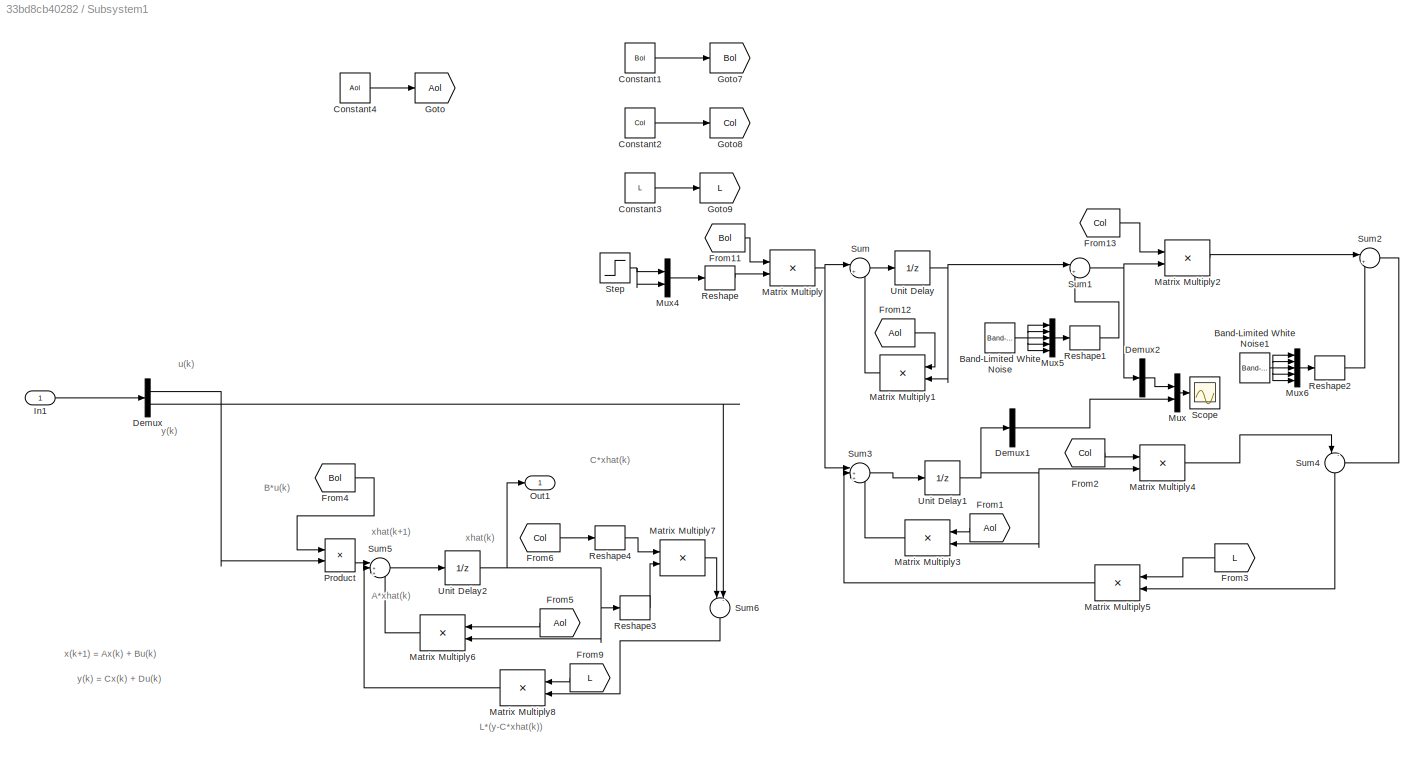
BLOCK [SubSystem] Subsystem1
  Commented = on
  Ports = [1, 1]
  RequestExecContextInheritance = off
BLOCK [Reference] Subsystem1/Band-Limited White Noise  REF=simulink/Sources/Band-Limited
White Noise
  Commented = on
  Ports = [0, 1]
  SourceBlock = simulink/Sources/Band-Limited\nWhite Noise
  SourceProductBaseCode = SL
  SourceType = Band-Limited White Noise.
BLOCK [Reference] Subsystem1/Band-Limited White Noise1  REF=simulink/Sources/Band-Limited
White Noise
  Commented = on
  Ports = [0, 1]
  SourceBlock = simulink/Sources/Band-Limited\nWhite Noise
  SourceProductBaseCode = SL
  SourceType = Band-Limited White Noise.
BLOCK [Constant] Subsystem1/Constant1
  Value = Bol
BLOCK [Constant] Subsystem1/Constant2
  Value = Col
BLOCK [Constant] Subsystem1/Constant3
  Value = L
BLOCK [Constant] Subsystem1/Constant4
  Value = Aol
BLOCK [Demux] Subsystem1/Demux
  Outputs = 2
  Ports = [1, 2]
BLOCK [Demux] Subsystem1/Demux1
  Commented = on
  Outputs = 5
  Ports = [1, 5]
BLOCK [Demux] Subsystem1/Demux2
  Commented = on
  Outputs = 5
  Ports = [1, 5]
BLOCK [From] Subsystem1/From1
  Commented = on
  GotoTag = Aol
BLOCK [From] Subsystem1/From11
  Commented = on
  GotoTag = Bol
BLOCK [From] Subsystem1/From12
  Commented = on
  GotoTag = Aol
BLOCK [From] Subsystem1/From13
  Commented = on
  GotoTag = Col
BLOCK [From] Subsystem1/From2
  Commented = on
  GotoTag = Col
BLOCK [From] Subsystem1/From3
  Commented = on
  GotoTag = L
BLOCK [From] Subsystem1/From4
  GotoTag = Bol
BLOCK [From] Subsystem1/From5
  GotoTag = Aol
BLOCK [From] Subsystem1/From6
  GotoTag = Col
BLOCK [From] Subsystem1/From9
  GotoTag = L
BLOCK [Goto] Subsystem1/Goto
  GotoTag = Aol
BLOCK [Goto] Subsystem1/Goto7
  GotoTag = Bol
BLOCK [Goto] Subsystem1/Goto8
  GotoTag = Col
  IconDisplay = Tag and signal name
BLOCK [Goto] Subsystem1/Goto9
  GotoTag = L
BLOCK [Inport] Subsystem1/In1
BLOCK [Product] Subsystem1/Matrix Multiply
  Commented = on
  Multiplication = Matrix(*)
  Ports = [2, 1]
BLOCK [Product] Subsystem1/Matrix Multiply1
  Commented = on
  Multiplication = Matrix(*)
  Ports = [2, 1]
BLOCK [Product] Subsystem1/Matrix Multiply2
  Commented = on
  Multiplication = Matrix(*)
  Ports = [2, 1]
BLOCK [Product] Subsystem1/Matrix Multiply3
  Commented = on
  Multiplication = Matrix(*)
  Ports = [2, 1]
BLOCK [Product] Subsystem1/Matrix Multiply4
  Commented = on
  Multiplication = Matrix(*)
  Ports = [2, 1]
BLOCK [Product] Subsystem1/Matrix Multiply5
  Commented = on
  Multiplication = Matrix(*)
  Ports = [2, 1]
BLOCK [Product] Subsystem1/Matrix Multiply6
  Multiplication = Matrix(*)
  Ports = [2, 1]
BLOCK [Product] Subsystem1/Matrix Multiply7
  Multiplication = Matrix(*)
  Ports = [2, 1]
BLOCK [Product] Subsystem1/Matrix Multiply8
  Multiplication = Matrix(*)
  Ports = [2, 1]
BLOCK [Mux] Subsystem1/Mux
  Commented = on
  DisplayOption = bar
  Inputs = 2
  Ports = [2, 1]
BLOCK [Mux] Subsystem1/Mux4
  Commented = on
  DisplayOption = bar
  Inputs = 2
  Ports = [2, 1]
BLOCK [Mux] Subsystem1/Mux5
  Commented = on
  DisplayOption = bar
  Inputs = 5
  Ports = [5, 1]
BLOCK [Mux] Subsystem1/Mux6
  Commented = on
  DisplayOption = bar
  Inputs = 5
  Ports = [5, 1]
BLOCK [Outport] Subsystem1/Out1
BLOCK [Product] Subsystem1/Product
  Multiplication = Matrix(*)
  Ports = [2, 1]
BLOCK [Reshape] Subsystem1/Reshape
  Commented = on
  OutputDimensionality = Customize
  OutputDimensions = [2,1]
  Ports = [1, 1]
BLOCK [Reshape] Subsystem1/Reshape1
  Commented = on
  OutputDimensionality = Customize
  OutputDimensions = [5,1]
  Ports = [1, 1]
BLOCK [Reshape] Subsystem1/Reshape2
  Commented = on
  OutputDimensionality = Customize
  OutputDimensions = [5,1]
  Ports = [1, 1]
BLOCK [Reshape] Subsystem1/Reshape3
  OutputDimensionality = Customize
  OutputDimensions = [4,1]
  Ports = [1, 1]
BLOCK [Reshape] Subsystem1/Reshape4
  OutputDimensionality = Customize
  OutputDimensions = [1,4]
  Ports = [1, 1]
BLOCK [Scope] Subsystem1/Scope
  Commented = on
  Floating = off
  NumInputPorts = 1
  Ports = [1]
  ScopeSpecificationString = Simulink.scopes.TimeScopeBlockCfg('CurrentConfiguration', extmgr.ConfigurationSet(extmgr.Configuration('Core','General UI',true),extmgr.Configuration('Core','Source UI',true),extmgr.Configuration('Sources','WiredSimulink',true,'DataLoggingVariableName','ScopeData21'),extmgr.Configuration('Visuals','Time Domain',true,'SerializedDisplays',{struct('MinYLimReal','-8.74084','MaxYLimReal','6.07776','YLa...<+1408ch>
BLOCK [Step] Subsystem1/Step
  Commented = on
  SampleTime = 0
BLOCK [Sum] Subsystem1/Sum
  Commented = on
  Inputs = |++
  Ports = [2, 1]
BLOCK [Sum] Subsystem1/Sum1
  Commented = on
  Inputs = |++
  Ports = [2, 1]
BLOCK [Sum] Subsystem1/Sum2
  Commented = on
  Inputs = |++
  Ports = [2, 1]
BLOCK [Sum] Subsystem1/Sum3
  Commented = on
  Inputs = |+++
  Ports = [3, 1]
BLOCK [Sum] Subsystem1/Sum4
  Commented = on
  Inputs = |-+
  NameLocation = left
  Ports = [2, 1]
BLOCK [Sum] Subsystem1/Sum5
  Inputs = |+++
  Ports = [3, 1]
BLOCK [Sum] Subsystem1/Sum6
  Inputs = |-+
  NameLocation = left
  Ports = [2, 1]
BLOCK [UnitDelay] Subsystem1/Unit Delay
  Commented = on
  HasFrameUpgradeWarning = on
  SampleTime = -1
BLOCK [UnitDelay] Subsystem1/Unit Delay1
  Commented = on
  HasFrameUpgradeWarning = on
  SampleTime = -1
BLOCK [UnitDelay] Subsystem1/Unit Delay2
  HasFrameUpgradeWarning = on
  SampleTime = -1
BLOCK [Sum] Sum
  Inputs = |++
  Ports = [2, 1]
BLOCK [Constant] Temperature (Deg. C)
  Commented = on
  Value = 25
BLOCK [Constant] Temperature (Deg. C)1
  Value = 25
BLOCK [Reference] Vin  REF=powerlib/Electrical
Sources/DC Voltage Source
  NameLocation = right
  Ports = [0, 0, 0, 0, 0, 1, 1]
  SourceBlock = powerlib/Electrical\nSources/DC Voltage Source
  SourceProductBaseCode = PS
  SourceType = DC Voltage Source
BLOCK [Reference] Voltage Measurement1  REF=powerlib/Measurements/Voltage Measurement
  Ports = [0, 1, 0, 0, 0, 2]
  SourceBlock = powerlib/Measurements/Voltage Measurement
  SourceProductBaseCode = PS
  SourceType = Voltage Measurement
  UserDataPersistent = on
BLOCK [Reference] Voltage Measurement2  REF=powerlib/Measurements/Voltage Measurement
  Ports = [0, 1, 0, 0, 0, 2]
  SourceBlock = powerlib/Measurements/Voltage Measurement
  SourceProductBaseCode = PS
  SourceType = Voltage Measurement
  UserDataPersistent = on
BLOCK [Reference] Voltage Measurement3  REF=powerlib/Measurements/Voltage Measurement
  Ports = [0, 1, 0, 0, 0, 2]
  SourceBlock = powerlib/Measurements/Voltage Measurement
  SourceProductBaseCode = PS
  SourceType = Voltage Measurement
  UserDataPersistent = on
BLOCK [Reference] Voltage Measurement4  REF=powerlib/Measurements/Voltage Measurement
  Ports = [0, 1, 0, 0, 0, 2]
  SourceBlock = powerlib/Measurements/Voltage Measurement
  SourceProductBaseCode = PS
  SourceType = Voltage Measurement
  UserDataPersistent = on
BLOCK [ZeroOrderHold] Zero-Order Hold
  SampleTime = 15e-6
BLOCK [ZeroOrderHold] Zero-Order Hold1
  SampleTime = 15e-6
BLOCK [ZeroOrderHold] Zero-Order Hold2
  SampleTime = 15e-6
BLOCK [ZeroOrderHold] Zero-Order Hold3
  SampleTime = 15e-6
BLOCK [Reference] powergui  REF=powerlib/powergui
  Ports = []
  Priority = 1
  SourceBlock = powerlib/powergui
  SourceProductBaseCode = PS
  SourceType = PSB option menu block
ANNOTATION (root): Follow these steps to perform FPGA-in-the-Loop simulation: 1. Drag this block into a Simulink model. 2. Connect all inputs and outputs. 3. Open the block mask to optionally change: - output sample times, data types, and frame size - HDL overclocking factor Usually the mask defaults will work in your model without modification. 4. Attach the FPGA development board to your host computer (FPGA progra...<+260ch>
ANNOTATION Subsystem1: A*xhat(k)
ANNOTATION Subsystem1: B*u(k)
ANNOTATION Subsystem1: C*xhat(k)
ANNOTATION Subsystem1: L*(y-C*xhat(k))
ANNOTATION Subsystem1: u(k)
ANNOTATION Subsystem1: x(k+1) = Ax(k) + Bu(k)
ANNOTATION Subsystem1: xhat(k)
ANNOTATION Subsystem1: xhat(k+1)
ANNOTATION Subsystem1: y(k)
ANNOTATION Subsystem1: y(k) = Cx(k) + Du(k)
LINE Band-Limited White Noise1:1 -> Sum:1
LINE Constant1:1 -> Mux6:1
NET Constant3:1 -> Mux9:1, Quantizer3:1
LINE Current Measurement1:1 -> Goto1:1
NET Current Measurement2:1 -> Goto2:1, Product:1
NET Current Measurement3:1 -> Product2:1, Scope7:1
LINE Current Measurement4:1 -> Scope32:1
LINE Demux1:1 -> Scope13:1
LINE Demux1:2 -> Scope12:1
LINE Demux1:3 -> Scope11:1
LINE Demux1:4 -> Scope14:1
LINE Demux2:1 -> Scope21:1
LINE Demux2:2 -> Scope22:1
LINE Demux2:3 -> Scope16:1
LINE Demux2:4 -> Scope19:1
LINE Demux3:1 -> Scope23:1
LINE Demux3:2 -> Scope24:1
LINE Demux3:3 -> Scope25:1
NET Demux3:4 -> Scope26:1, Sum:2
LINE Demux4:1 -> Scope31:1
LINE Demux4:2 -> Scope30:1
LINE Demux4:3 -> Scope29:1
LINE Demux4:4 -> Scope9:1
LINE Demux5:1 -> Scope20:1
LINE Demux5:2 -> Scope18:1
LINE Demux5:3 -> Scope17:1
LINE Demux5:4 -> Scope27:1
LINE Demux6:1 -> Scope35:1
LINE Demux6:2 -> Scope34:1
LINE Demux6:3 -> Scope28:1
LINE Demux6:4 -> Scope36:1
LINE Duty Cycle1:1 -> PWM Generator (DC-DC)3:1
LINE Duty Cycle2:1 -> PWM Generator (DC-DC)4:1
LINE Duty Cycle:1 -> PWM Generator (DC-DC):1
LINE From10:1 -> Mux2:1
LINE From11:1 -> Mux2:2
LINE From12:1 -> Mux2:3
NET From1:1 -> Mux1:2, Product1:2
LINE From2:1 -> Mux:1
NET From4:1 -> Mux:2, Product1:1
LINE From8:1 -> Quantizer:1
LINE From9:1 -> Mux1:1
LINE From:1 -> Mux3:2
NET Integrator3:1 -> Demux2:1, Mux7:1
NET Integrator4:1 -> Demux3:1, Mux8:1
LINE Irradiance (W//m2)1:1 -> Photovoltaic Array:1
LINE Irradiance (W//m2)2:1 -> Photovoltaic Array1:1
LINE Kalman Filter:1 -> Demux5:1
LINE MATLAB Function1:1 -> Demux6:1
LINE MATLAB Function3:1 -> Integrator3:1
LINE MATLAB Function4:1 -> Integrator4:1
LINE MATLAB Function:1 -> Scope4:1
LINE MATLAB Function:2 -> Scope3:1
NET MATLAB Function:3 -> Mosfet1:1, Mosfet:1, Quantizer1:1, Scope2:1
LINE Mux11:1 -> Subsystem:1
LINE Mux1:1 -> Scope1:1
LINE Mux2:1 -> MATLAB Function:1
LINE Mux3:1 -> Scope5:1
LINE Mux4:1 -> Subsystem1:1
LINE Mux6:1 -> Mux7:2
LINE Mux7:1 -> MATLAB Function3:1
LINE Mux8:1 -> MATLAB Function4:1
LINE Mux9:1 -> Mux8:2
LINE Mux:1 -> Scope:1
LINE PWM Generator (DC-DC)3:1 -> Mux6:2
LINE PWM Generator (DC-DC):1 -> Goto4:1
LINE Product1:1 -> Goto:1
LINE Product2:1 -> Scope8:1
LINE Product:1 -> Mux3:1
LINE Quantizer1:1 -> Zero-Order Hold1:1
LINE Quantizer2:1 -> Zero-Order Hold2:1
LINE Quantizer3:1 -> Zero-Order Hold3:1
LINE Quantizer:1 -> Zero-Order Hold:1
LINE Step5:1 -> Mux9:2
NET Subsystem/Band-Limited White Noise1:1 -> Subsystem/Mux6:1, Subsystem/Mux6:2, Subsystem/Mux6:3, Subsystem/Mux6:4, Subsystem/Mux6:5
NET Subsystem/Band-Limited White Noise:1 -> Subsystem/Mux5:1, Subsystem/Mux5:2, Subsystem/Mux5:3, Subsystem/Mux5:4, Subsystem/Mux5:5
LINE Subsystem/Constant1:1 -> Subsystem/Goto7:1
LINE Subsystem/Constant2:1 -> Subsystem/Goto8:1
LINE Subsystem/Constant3:1 -> Subsystem/Goto9:1
LINE Subsystem/Constant4:1 -> Subsystem/Goto:1
LINE Subsystem/Demux1:3 -> Subsystem/Mux:2
LINE Subsystem/Demux2:3 -> Subsystem/Mux:1
LINE Subsystem/Demux:1 -> Subsystem/Product:2
LINE Subsystem/Demux:2 -> Subsystem/Sum6:2
LINE Subsystem/From11:1 -> Subsystem/Matrix Multiply:1
LINE Subsystem/From12:1 -> Subsystem/Matrix Multiply1:1
LINE Subsystem/From13:1 -> Subsystem/Matrix Multiply2:1
LINE Subsystem/From1:1 -> Subsystem/Matrix Multiply3:1
LINE Subsystem/From2:1 -> Subsystem/Matrix Multiply4:1
LINE Subsystem/From3:1 -> Subsystem/Matrix Multiply5:1
LINE Subsystem/From4:1 -> Subsystem/Product:1
LINE Subsystem/From5:1 -> Subsystem/Matrix Multiply6:1
LINE Subsystem/From6:1 -> Subsystem/Reshape4:1
LINE Subsystem/From9:1 -> Subsystem/Matrix Multiply8:1
LINE Subsystem/In1:1 -> Subsystem/Demux:1
LINE Subsystem/Matrix Multiply1:1 -> Subsystem/Sum:2
LINE Subsystem/Matrix Multiply2:1 -> Subsystem/Sum2:1
LINE Subsystem/Matrix Multiply3:1 -> Subsystem/Sum3:3
LINE Subsystem/Matrix Multiply4:1 -> Subsystem/Sum4:1
LINE Subsystem/Matrix Multiply5:1 -> Subsystem/Sum3:2
LINE Subsystem/Matrix Multiply6:1 -> Subsystem/Sum5:3
LINE Subsystem/Matrix Multiply7:1 -> Subsystem/Sum6:1
LINE Subsystem/Matrix Multiply8:1 -> Subsystem/Sum5:2
NET Subsystem/Matrix Multiply:1 -> Subsystem/Sum3:1, Subsystem/Sum:1
LINE Subsystem/Mux4:1 -> Subsystem/Reshape:1
LINE Subsystem/Mux5:1 -> Subsystem/Reshape1:1
LINE Subsystem/Mux6:1 -> Subsystem/Reshape2:1
LINE Subsystem/Mux:1 -> Subsystem/Scope:1
LINE Subsystem/Product:1 -> Subsystem/Sum5:1
LINE Subsystem/Reshape1:1 -> Subsystem/Sum1:2
LINE Subsystem/Reshape2:1 -> Subsystem/Sum2:2
LINE Subsystem/Reshape3:1 -> Subsystem/Matrix Multiply7:2
LINE Subsystem/Reshape4:1 -> Subsystem/Matrix Multiply7:1
LINE Subsystem/Reshape:1 -> Subsystem/Matrix Multiply:2
NET Subsystem/Step:1 -> Subsystem/Mux4:1, Subsystem/Mux4:2
NET Subsystem/Sum1:1 -> Subsystem/Demux2:1, Subsystem/Matrix Multiply2:2
LINE Subsystem/Sum2:1 -> Subsystem/Sum4:2
LINE Subsystem/Sum3:1 -> Subsystem/Unit Delay1:1
LINE Subsystem/Sum4:1 -> Subsystem/Matrix Multiply5:2
LINE Subsystem/Sum5:1 -> Subsystem/Unit Delay2:1
LINE Subsystem/Sum6:1 -> Subsystem/Matrix Multiply8:2
LINE Subsystem/Sum:1 -> Subsystem/Unit Delay:1
NET Subsystem/Unit Delay1:1 -> Subsystem/Demux1:1, Subsystem/Matrix Multiply3:2, Subsystem/Matrix Multiply4:2
NET Subsystem/Unit Delay2:1 -> Subsystem/Matrix Multiply6:2, Subsystem/Out1:1, Subsystem/Reshape3:1
NET Subsystem/Unit Delay:1 -> Subsystem/Matrix Multiply1:2, Subsystem/Sum1:1
NET Subsystem1/Band-Limited White Noise1:1 -> Subsystem1/Mux6:1, Subsystem1/Mux6:2, Subsystem1/Mux6:3, Subsystem1/Mux6:4, Subsystem1/Mux6:5
NET Subsystem1/Band-Limited White Noise:1 -> Subsystem1/Mux5:1, Subsystem1/Mux5:2, Subsystem1/Mux5:3, Subsystem1/Mux5:4, Subsystem1/Mux5:5
LINE Subsystem1/Constant1:1 -> Subsystem1/Goto7:1
LINE Subsystem1/Constant2:1 -> Subsystem1/Goto8:1
LINE Subsystem1/Constant3:1 -> Subsystem1/Goto9:1
LINE Subsystem1/Constant4:1 -> Subsystem1/Goto:1
LINE Subsystem1/Demux1:3 -> Subsystem1/Mux:2
LINE Subsystem1/Demux2:3 -> Subsystem1/Mux:1
LINE Subsystem1/Demux:1 -> Subsystem1/Product:2
LINE Subsystem1/Demux:2 -> Subsystem1/Sum6:2
LINE Subsystem1/From11:1 -> Subsystem1/Matrix Multiply:1
LINE Subsystem1/From12:1 -> Subsystem1/Matrix Multiply1:1
LINE Subsystem1/From13:1 -> Subsystem1/Matrix Multiply2:1
LINE Subsystem1/From1:1 -> Subsystem1/Matrix Multiply3:1
LINE Subsystem1/From2:1 -> Subsystem1/Matrix Multiply4:1
LINE Subsystem1/From3:1 -> Subsystem1/Matrix Multiply5:1
LINE Subsystem1/From4:1 -> Subsystem1/Product:1
LINE Subsystem1/From5:1 -> Subsystem1/Matrix Multiply6:1
LINE Subsystem1/From6:1 -> Subsystem1/Reshape4:1
LINE Subsystem1/From9:1 -> Subsystem1/Matrix Multiply8:1
LINE Subsystem1/In1:1 -> Subsystem1/Demux:1
LINE Subsystem1/Matrix Multiply1:1 -> Subsystem1/Sum:2
LINE Subsystem1/Matrix Multiply2:1 -> Subsystem1/Sum2:1
LINE Subsystem1/Matrix Multiply3:1 -> Subsystem1/Sum3:3
LINE Subsystem1/Matrix Multiply4:1 -> Subsystem1/Sum4:1
LINE Subsystem1/Matrix Multiply5:1 -> Subsystem1/Sum3:2
LINE Subsystem1/Matrix Multiply6:1 -> Subsystem1/Sum5:3
LINE Subsystem1/Matrix Multiply7:1 -> Subsystem1/Sum6:1
LINE Subsystem1/Matrix Multiply8:1 -> Subsystem1/Sum5:2
NET Subsystem1/Matrix Multiply:1 -> Subsystem1/Sum3:1, Subsystem1/Sum:1
LINE Subsystem1/Mux4:1 -> Subsystem1/Reshape:1
LINE Subsystem1/Mux5:1 -> Subsystem1/Reshape1:1
LINE Subsystem1/Mux6:1 -> Subsystem1/Reshape2:1
LINE Subsystem1/Mux:1 -> Subsystem1/Scope:1
LINE Subsystem1/Product:1 -> Subsystem1/Sum5:1
LINE Subsystem1/Reshape1:1 -> Subsystem1/Sum1:2
LINE Subsystem1/Reshape2:1 -> Subsystem1/Sum2:2
LINE Subsystem1/Reshape3:1 -> Subsystem1/Matrix Multiply7:2
LINE Subsystem1/Reshape4:1 -> Subsystem1/Matrix Multiply7:1
LINE Subsystem1/Reshape:1 -> Subsystem1/Matrix Multiply:2
NET Subsystem1/Step:1 -> Subsystem1/Mux4:1, Subsystem1/Mux4:2
NET Subsystem1/Sum1:1 -> Subsystem1/Demux2:1, Subsystem1/Matrix Multiply2:2
LINE Subsystem1/Sum2:1 -> Subsystem1/Sum4:2
LINE Subsystem1/Sum3:1 -> Subsystem1/Unit Delay1:1
LINE Subsystem1/Sum4:1 -> Subsystem1/Matrix Multiply5:2
LINE Subsystem1/Sum5:1 -> Subsystem1/Unit Delay2:1
LINE Subsystem1/Sum6:1 -> Subsystem1/Matrix Multiply8:2
LINE Subsystem1/Sum:1 -> Subsystem1/Unit Delay:1
NET Subsystem1/Unit Delay1:1 -> Subsystem1/Demux1:1, Subsystem1/Matrix Multiply3:2, Subsystem1/Matrix Multiply4:2
NET Subsystem1/Unit Delay2:1 -> Subsystem1/Matrix Multiply6:2, Subsystem1/Out1:1, Subsystem1/Reshape3:1
NET Subsystem1/Unit Delay:1 -> Subsystem1/Matrix Multiply1:2, Subsystem1/Sum1:1
LINE Subsystem1:1 -> Demux1:1
LINE Subsystem:1 -> Demux4:1
NET Sum:1 -> Quantizer2:1, Scope10:1
LINE Temperature (Deg. C)1:1 -> Photovoltaic Array1:2
LINE Temperature (Deg. C):1 -> Photovoltaic Array:2
LINE Voltage Measurement1:1 -> Goto3:1
NET Voltage Measurement2:1 -> Product2:2, Scope6:1
NET Voltage Measurement3:1 -> Goto6:1, Product:2
LINE Voltage Measurement4:1 -> Scope33:1
LINE Zero-Order Hold1:1 -> Mux11:1
NET Zero-Order Hold2:1 -> Kalman Filter:2, MATLAB Function1:2, Mux4:2
NET Zero-Order Hold3:1 -> Kalman Filter:1, MATLAB Function1:1, Mux4:1
LINE Zero-Order Hold:1 -> Mux11:2
PNET net1: C0:LConn1 -- R2:RConn1 -- Voltage Measurement4:LConn1
PNET net2: C0:RConn1 -- C1:RConn1 -- Mosfet1:RConn1 -- Mosfet:RConn1 -- R1:RConn1 -- Vin:LConn1 -- Voltage Measurement1:LConn2 -- Voltage Measurement3:LConn2 -- Voltage Measurement4:LConn2
PNET net3: C1:LConn1 -- Current Measurement1:LConn1 -- D0:RConn1 -- Voltage Measurement1:LConn1
PLINE Current Measurement1:RConn1 -- R1:LConn1
PNET net4: Current Measurement2:LConn1 -- Vin:RConn1 -- Voltage Measurement3:LConn1
PLINE Current Measurement2:RConn1 -- R4:LConn1
PNET net5: Current Measurement3:LConn1 -- Photovoltaic Array1:RConn1 -- Voltage Measurement2:LConn1
PLINE Current Measurement3:RConn1 -- R3:LConn1
PNET net6: Current Measurement4:LConn1 -- D1:RConn1 -- D2:RConn1
PLINE Current Measurement4:RConn1 -- L2:LConn1
PNET net7: D0:LConn1 -- L2:RConn1 -- Mosfet1:LConn1
PNET net8: D1:LConn1 -- L1:LConn1 -- R2:LConn1 -- R4:RConn1
PNET net9: D2:LConn1 -- L1:RConn1 -- Mosfet:LConn1
PNET net10: Photovoltaic Array1:RConn2 -- R3:RConn1 -- Voltage Measurement2:LConn2
note: NET lines group one-source signal fan-out (src -> all destinations, sorted); 1:1 wires keep LINE; PNET lines group multi-terminal physical nets as a canonical sorted terminal list (undirected conserving connections); 2-terminal nets keep the pairwise PLINE form
CHART MATLAB Function1 states=1 transitions=1
  STATE_LABEL 'eML_blk_kernel()'
  STATE_LABEL 'SCRIPT:\nfunction xhat  = fcn(u, y)\n%Kalman filter design using Small Signal Model of Circuit\n\n%The purpose of this module is to approximate Ipv and Vpv so that a sensor\n%is not needed for those variables, it also functions to remove noise and\n%could possibly replace the MCP module using its own predictions\n\n%Existing Model assumes Constant Vpv with added series resistor so that\n% Ipv = (Vpv - Vcpv...<+2287ch>'
CHART MATLAB Function states=1 transitions=1
  STATE_LABEL 'eML_blk_kernel()'
  STATE_LABEL "SCRIPT:\nfunction [choice, debug, y]= fcn(u)\nVpv=u(1);\nIpv=u(2);\nVout=u(3);\n\n%This module contains the MPC-MPPT Control Algorithm\n\n%The MPC module follows the flow chart of Fig. 8 in Referenced Research Paper\n\n%This MATLAB fn block's settings have been changed to have a sampling rate\n%of 15uS instead of being continous sample mode\n\n\n%prevent crazy simulation transients from breaking the algorithm:\n...<+2029ch>"
CHART MATLAB Function3 states=1 transitions=1
  STATE_LABEL 'eML_blk_kernel()'
  STATE_LABEL 'SCRIPT:\nfunction y = fcn(u)\n\nX=u(1:4);\nVpv=u(5);\nu=u(6);\n\n\n\n% parameters:\n\n\nCpv=260e-6;\nCo=260e-6;\nL1=3e-3;\nL2=3e-3;\nR=100;\nRpv = 1;\n\n% Compact form\nA=[ 0 0 -1/(2*L1) 1/(2*L1) ;\n    0 0 -1/(2*L2) 1/(2*L2) ;\n    0 1/Co  -1/(R*Co) 0;\n    -1/Cpv 0 0 -1/(Rpv*Cpv)];\n\nB=[0 0 1/(2*L1) 1/(2*L1);\n    0 0 1/(2*L2) 1/(2*L2);\n     0 -1/Co 0 0;\n    0 -1/Cpv 0 0 ];\n     \n     \nb=[0; 0; 0; 0];\n\nd=[0; 0; 0; Vpv/(...<+34ch>'
CHART MATLAB Function4 states=1 transitions=1
  STATE_LABEL 'eML_blk_kernel()'
  STATE_LABEL 'SCRIPT:\nfunction y = fcn(u)\n\nX=u(1:4);\nVpv=u(5);\nu=u(6);\n\n\n\n% parameters:\n%5/10/2021 u_ePDATED\n\n\nCpv=260e-6;\nCout=260e-6;\nL1=3e-3;\nL2=3e-3;\nRout=100;\nRpv = 1;\nRL1 = 1;\nRL2 = 1;\n\nu_e = .5;\n\n% Compact form\nA=[(-1/(Cpv*Rpv)) (-1/(Cpv)) (-u_e/(Cpv)) 0 ;\n    (1/(L1+L2) + L2*u_e/(L1*(L1+L2)))  (-RL1/(L1+L2) -RL1*L2*u_e/(L1*(L1+L2)))  (-RL2/(L1+L2) + RL2*u_e/(L1+L2)) (-1/(L1+L2) + u_e/(L1+L2));\n    (1/(L...<+3102ch>'
CHART  states=0 transitions=0
CHART  states=0 transitions=0
CHART  states=0 transitions=0
CHART  states=0 transitions=0
